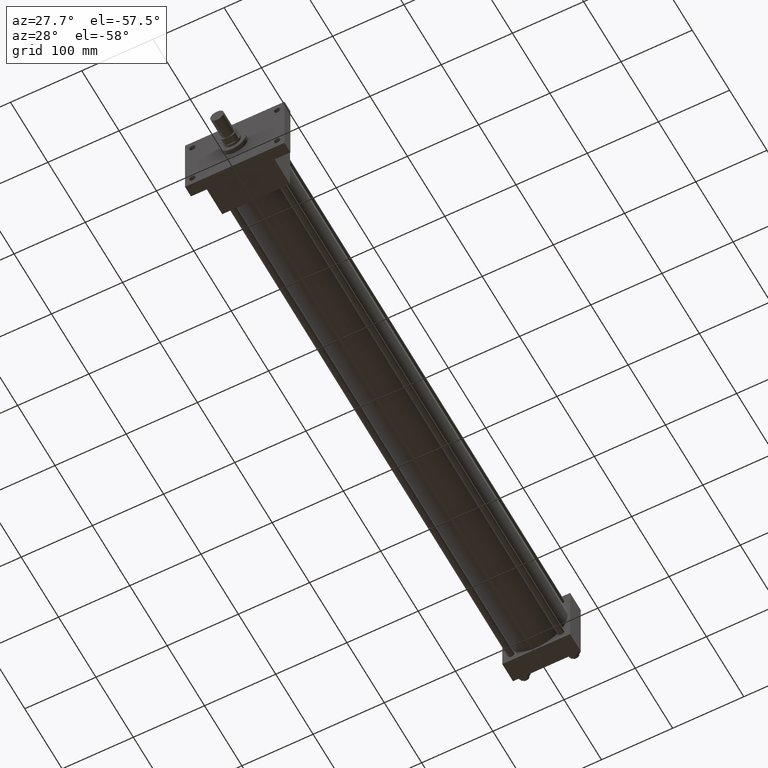
[diagram: clean part render]
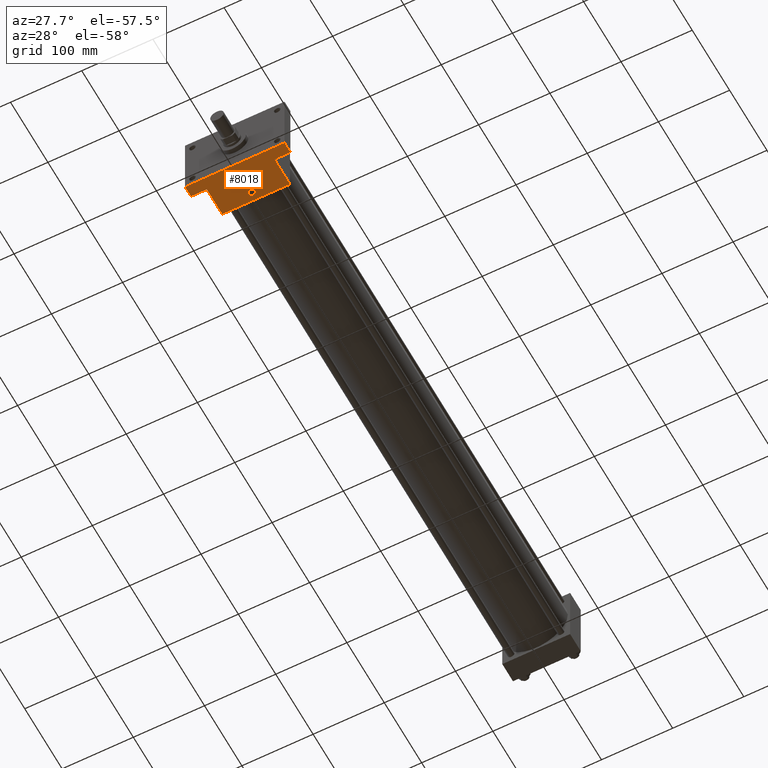
[diagram: same view with one face highlighted and labeled with its STEP entity id]
A machine part, auxiliary view. The second image highlights one B-rep face of the part: STEP entity #8018.
In plain terms, the highlighted planar face has unit normal (0, 0, -1).
Its self-contained STEP definition (entity closure, byte-faithful):
#483=EDGE_CURVE('',#488,#489,#484,.T.);
#484=LINE('',#485,#486);
#485=CARTESIAN_POINT('',(-6.985000000E+001,3.492500000E+001,-4.762500000E+001));
#486=VECTOR('',#487,1.0E+000);
#487=DIRECTION('',(1.0E+000,0.0E+000,0.0E+000));
#488=VERTEX_POINT('',#490);
#489=VERTEX_POINT('',#491);
#490=CARTESIAN_POINT('',(4.762500000E+001,3.492500000E+001,-4.762500000E+001));
#491=CARTESIAN_POINT('',(6.985000000E+001,3.492500000E+001,-4.762500000E+001));
#516=FACE_OUTER_BOUND('',#518,.T.);
#517=FACE_BOUND('',#519,.T.);
#518=EDGE_LOOP('',(#520,#521,#522,#523,#524,#525,#526,#527));
#519=EDGE_LOOP('',(#571));
#520=ORIENTED_EDGE('',*,*,#528,.T.);
#521=ORIENTED_EDGE('',*,*,#535,.F.);
#522=ORIENTED_EDGE('',*,*,#542,.F.);
#523=ORIENTED_EDGE('',*,*,#549,.T.);
#524=ORIENTED_EDGE('',*,*,#552,.F.);
#525=ORIENTED_EDGE('',*,*,#559,.T.);
#526=ORIENTED_EDGE('',*,*,#566,.T.);
#527=ORIENTED_EDGE('',*,*,#483,.T.);
#528=EDGE_CURVE('',#489,#533,#529,.T.);
#529=LINE('',#530,#531);
#530=CARTESIAN_POINT('',(6.985000000E+001,3.492500000E+001,-4.762500000E+001));
#531=VECTOR('',#532,1.0E+000);
#532=DIRECTION('',(0.0E+000,-1.0E+000,0.0E+000));
#533=VERTEX_POINT('',#534);
#534=CARTESIAN_POINT('',(6.985000000E+001,1.905000000E+001,-4.762500000E+001));
#535=EDGE_CURVE('',#540,#533,#536,.T.);
#536=LINE('',#537,#538);
#537=CARTESIAN_POINT('',(-6.985000000E+001,1.905000000E+001,-4.762500000E+001));
#538=VECTOR('',#539,1.0E+000);
#539=DIRECTION('',(1.0E+000,0.0E+000,0.0E+000));
#540=VERTEX_POINT('',#541);
#541=CARTESIAN_POINT('',(-6.985000000E+001,1.905000000E+001,-4.762500000E+001));
#542=EDGE_CURVE('',#547,#540,#543,.T.);
#543=LINE('',#544,#545);
#544=CARTESIAN_POINT('',(-6.985000000E+001,3.492500000E+001,-4.762500000E+001));
#545=VECTOR('',#546,1.0E+000);
#546=DIRECTION('',(0.0E+000,-1.0E+000,0.0E+000));
#547=VERTEX_POINT('',#548);
#548=CARTESIAN_POINT('',(-6.985000000E+001,3.492500000E+001,-4.762500000E+001));
#549=EDGE_CURVE('',#547,#550,#484,.T.);
#550=VERTEX_POINT('',#551);
#551=CARTESIAN_POINT('',(-4.762500000E+001,3.492500000E+001,-4.762500000E+001));
#552=EDGE_CURVE('',#557,#550,#553,.T.);
#553=LINE('',#554,#555);
#554=CARTESIAN_POINT('',(-4.762500000E+001,7.620000000E+001,-4.762500000E+001));
#555=VECTOR('',#556,1.0E+000);
#556=DIRECTION('',(0.0E+000,-1.0E+000,0.0E+000));
#557=VERTEX_POINT('',#558);
#558=CARTESIAN_POINT('',(-4.762500000E+001,7.620000000E+001,-4.762500000E+001));
#559=EDGE_CURVE('',#557,#564,#560,.T.);
#560=LINE('',#561,#562);
#561=CARTESIAN_POINT('',(-4.762500000E+001,7.620000000E+001,-4.762500000E+001));
#562=VECTOR('',#563,1.0E+000);
#563=DIRECTION('',(1.0E+000,0.0E+000,0.0E+000));
#564=VERTEX_POINT('',#565);
#565=CARTESIAN_POINT('',(4.762500000E+001,7.620000000E+001,-4.762500000E+001));
#566=EDGE_CURVE('',#564,#488,#567,.T.);
#567=LINE('',#568,#569);
#568=CARTESIAN_POINT('',(4.762500000E+001,7.620000000E+001,-4.762500000E+001));
#569=VECTOR('',#570,1.0E+000);
#570=DIRECTION('',(0.0E+000,-1.0E+000,0.0E+000));
#571=ORIENTED_EDGE('',*,*,#572,.T.);
#572=EDGE_CURVE('',#578,#578,#573,.T.);
#573=CIRCLE('',#574,4.365625000E+000);
#574=AXIS2_PLACEMENT_3D('',#575,#576,#577);
#575=CARTESIAN_POINT('',(0.000000000E+000,6.508750000E+001,-4.762500000E+001));
#576=DIRECTION('',(0.0E+000,0.0E+000,1.0E+000));
#577=DIRECTION('',(1.0E+000,0.0E+000,0.0E+000));
#578=VERTEX_POINT('',#579);
#579=CARTESIAN_POINT('',(4.365625000E+000,6.508750000E+001,-4.762500000E+001));
#580=PLANE('',#581);
#581=AXIS2_PLACEMENT_3D('',#582,#583,#584);
#582=CARTESIAN_POINT('',(-6.985000000E+001,3.492500000E+001,-4.762500000E+001));
#583=DIRECTION('',(0.0E+000,0.0E+000,-1.0E+000));
#584=DIRECTION('',(-1.0E+000,0.0E+000,0.0E+000));
#8018=ADVANCED_FACE('',(#516,#517),#580,.T.);